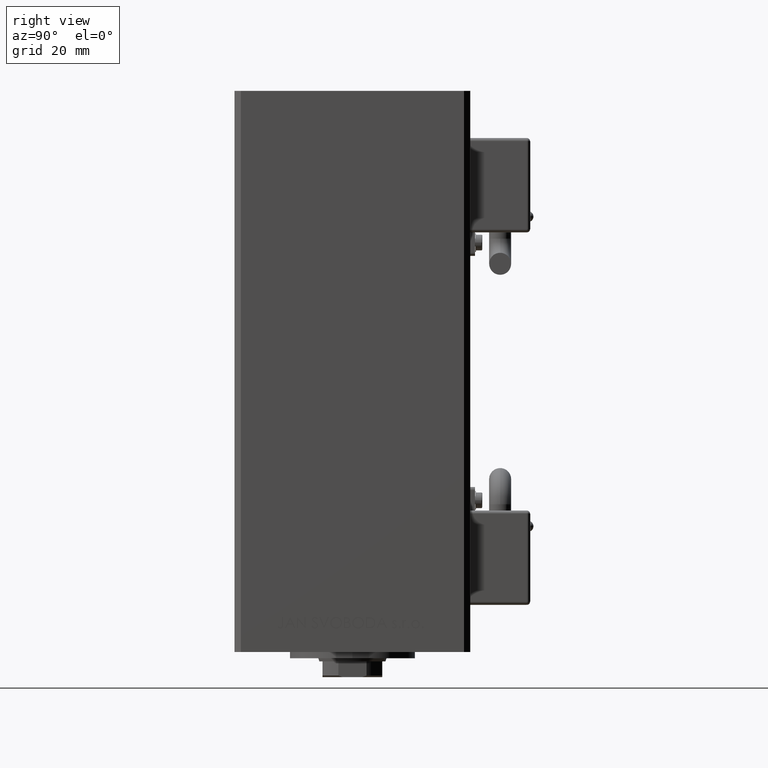
[diagram: clean part render]
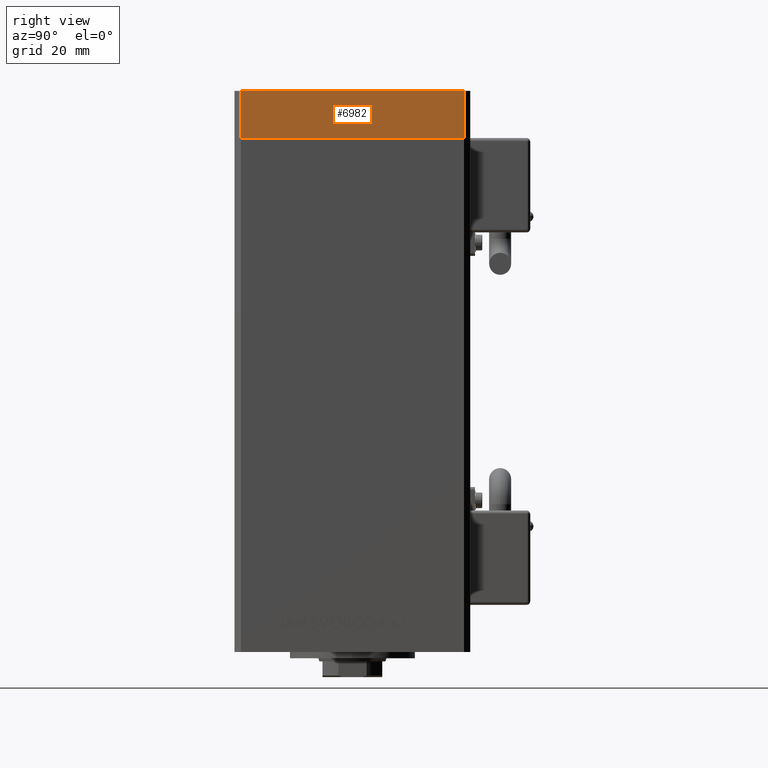
[diagram: same view with one face highlighted and labeled with its STEP entity id]
A machine part, right view. The second image highlights one B-rep face of the part: STEP entity #6982.
In plain terms, the highlighted planar face has unit normal (1, 0, 0).
Its self-contained STEP definition (entity closure, byte-faithful):
#1090 = ORIENTED_EDGE ( 'NONE', *, *, #23223, .F. ) ;
#1437 = DIRECTION ( 'NONE',  ( -1.172770800660376741E-15, 1.000000000000000000, 0.000000000000000000 ) ) ;
#2110 = EDGE_CURVE ( 'NONE', #27729, #39884, #44160, .T. ) ;
#2203 = CARTESIAN_POINT ( 'NONE',  ( 42.49999999999992895, 35.50000000000000000, 0.000000000000000000 ) ) ;
#2430 = EDGE_CURVE ( 'NONE', #50446, #17747, #15570, .T. ) ;
#6982 = ADVANCED_FACE ( 'NONE', ( #9403 ), #29661, .T. ) ;
#8028 = VECTOR ( 'NONE', #48085, 1000.000000000000000 ) ;
#8794 = ORIENTED_EDGE ( 'NONE', *, *, #2430, .F. ) ;
#9403 = FACE_OUTER_BOUND ( 'NONE', #13160, .T. ) ;
#10187 = DIRECTION ( 'NONE',  ( 1.000000000000000000, 1.172770800660376741E-15, -0.000000000000000000 ) ) ;
#12267 = VECTOR ( 'NONE', #23377, 1000.000000000000000 ) ;
#13160 = EDGE_LOOP ( 'NONE', ( #8794, #1090, #35741, #49727 ) ) ;
#14981 = EDGE_CURVE ( 'NONE', #39884, #17747, #39908, .T. ) ;
#15570 = LINE ( 'NONE', #26766, #8028 ) ;
#17747 = VERTEX_POINT ( 'NONE', #2203 ) ;
#19385 = CARTESIAN_POINT ( 'NONE',  ( 42.49999999999992895, 35.50000000000000000, -15.00000000000000000 ) ) ;
#20188 = LINE ( 'NONE', #47665, #21486 ) ;
#21486 = VECTOR ( 'NONE', #32191, 1000.000000000000000 ) ;
#22803 = CARTESIAN_POINT ( 'NONE',  ( 42.50000000000000711, -35.50000000000000000, 0.000000000000000000 ) ) ;
#23223 = EDGE_CURVE ( 'NONE', #27729, #50446, #20188, .T. ) ;
#23377 = DIRECTION ( 'NONE',  ( -1.172770800660376741E-15, 1.000000000000000000, 0.000000000000000000 ) ) ;
#24280 = CARTESIAN_POINT ( 'NONE',  ( 42.50000000000000711, -35.50000000000000000, -15.00000000000000000 ) ) ;
#26766 = CARTESIAN_POINT ( 'NONE',  ( 42.50000000000000711, -35.50000000000000000, 0.000000000000000000 ) ) ;
#27729 = VERTEX_POINT ( 'NONE', #24280 ) ;
#29661 = PLANE ( 'NONE',  #33763 ) ;
#32162 = CARTESIAN_POINT ( 'NONE',  ( 42.50000000000000711, -35.50000000000000000, -15.00000000000000000 ) ) ;
#32191 = DIRECTION ( 'NONE',  ( 0.000000000000000000, 0.000000000000000000, 1.000000000000000000 ) ) ;
#33763 = AXIS2_PLACEMENT_3D ( 'NONE', #37907, #10187, #1437 ) ;
#35741 = ORIENTED_EDGE ( 'NONE', *, *, #2110, .T. ) ;
#37907 = CARTESIAN_POINT ( 'NONE',  ( 42.50000000000000711, -35.50000000000000000, -15.00000000000000000 ) ) ;
#39884 = VERTEX_POINT ( 'NONE', #42272 ) ;
#39908 = LINE ( 'NONE', #19385, #48406 ) ;
#40162 = DIRECTION ( 'NONE',  ( 0.000000000000000000, 0.000000000000000000, 1.000000000000000000 ) ) ;
#42272 = CARTESIAN_POINT ( 'NONE',  ( 42.49999999999992895, 35.50000000000000000, -15.00000000000000000 ) ) ;
#44160 = LINE ( 'NONE', #32162, #12267 ) ;
#47665 = CARTESIAN_POINT ( 'NONE',  ( 42.50000000000000711, -35.50000000000000000, -15.00000000000000000 ) ) ;
#48085 = DIRECTION ( 'NONE',  ( -1.172770800660376741E-15, 1.000000000000000000, 0.000000000000000000 ) ) ;
#48406 = VECTOR ( 'NONE', #40162, 1000.000000000000000 ) ;
#49727 = ORIENTED_EDGE ( 'NONE', *, *, #14981, .T. ) ;
#50446 = VERTEX_POINT ( 'NONE', #22803 ) ;